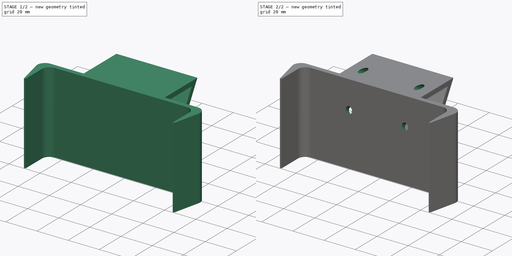
[diagram: build sequence overview — one tinted view per stage of 2, left to right]
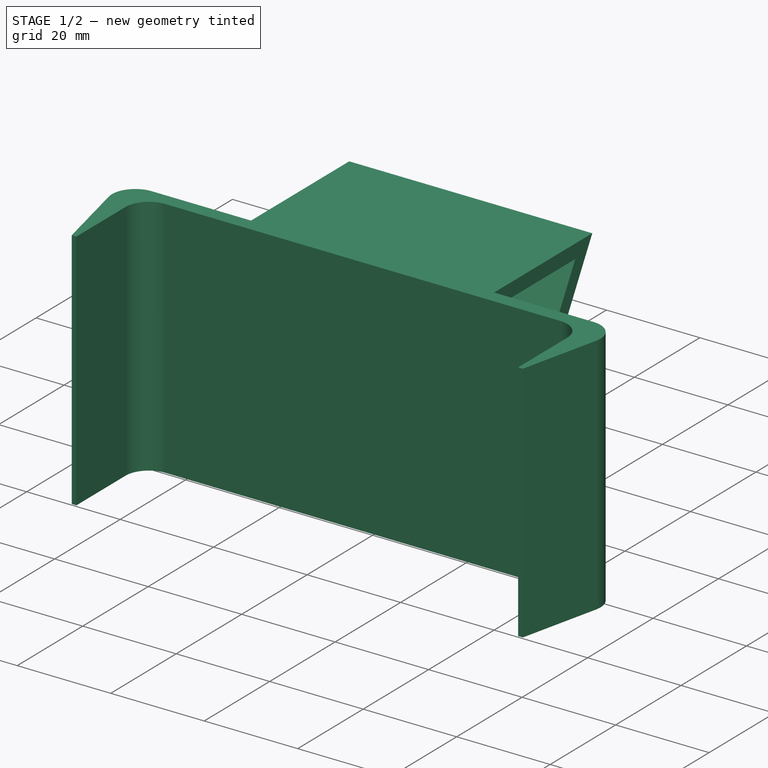
[diagram: stage 1 of 2 — iso view after this stage's code; geometry added in this stage tinted green]
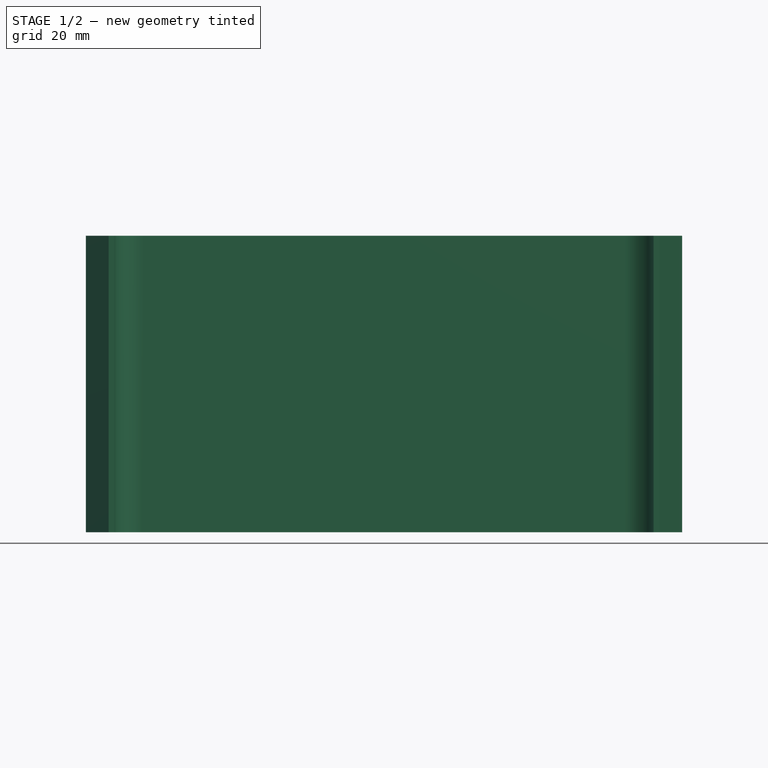
[diagram: stage 1 of 2 — front view after this stage's code; geometry added in this stage tinted green]
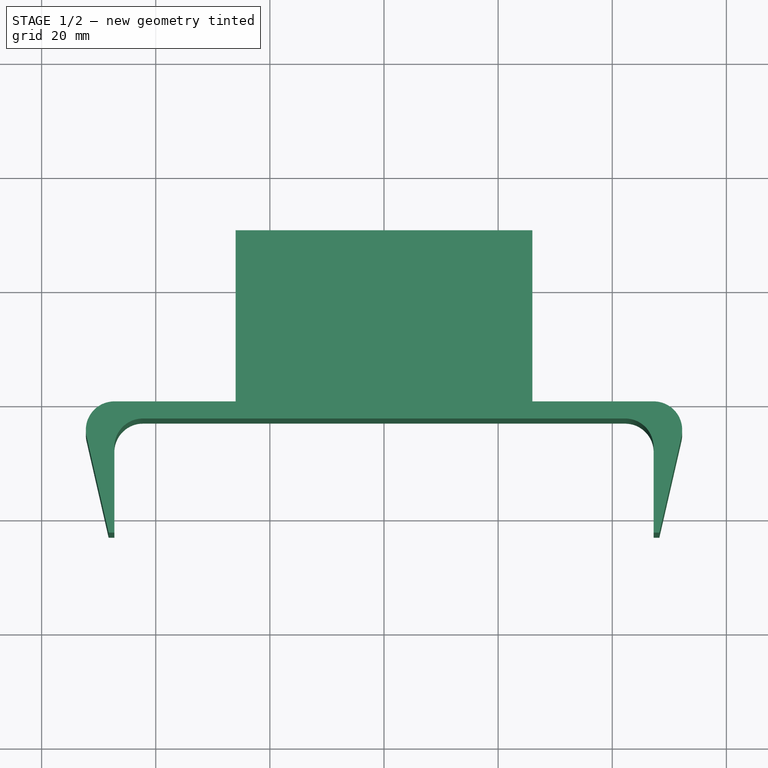
[diagram: stage 1 of 2 — top view after this stage's code; geometry added in this stage tinted green]
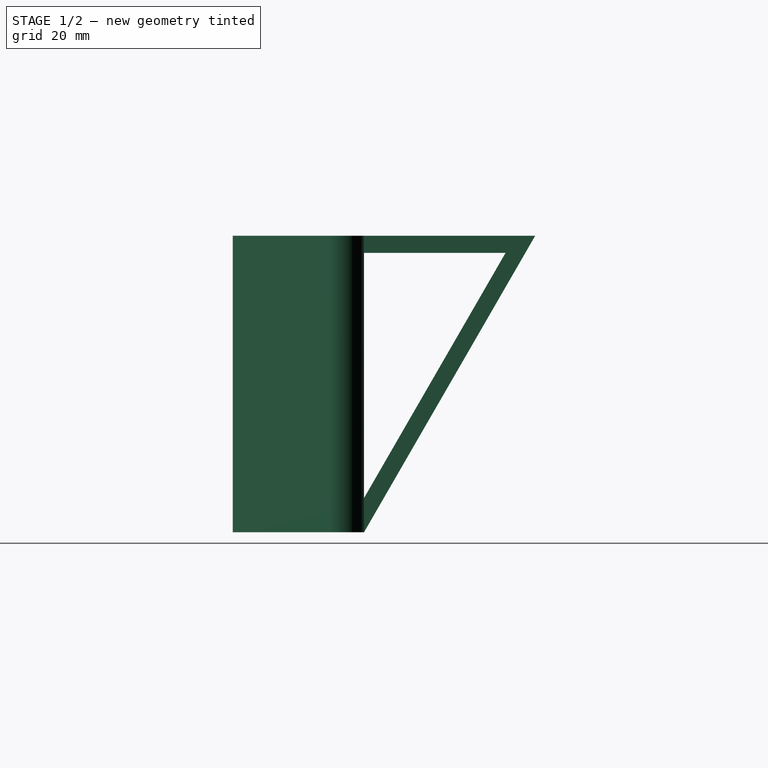
[diagram: stage 1 of 2 — right view after this stage's code; geometry added in this stage tinted green]
FCSTD DOCUMENT  (FreeCAD 0.20R25352 (Git))
Label: hot air holder
License: All rights reserved
LicenseURL: http://en.wikipedia.org/wiki/All_rights_reserved
objects: Sketcher::SketchObject×3, PartDesign::Pad×2, PartDesign::Pocket×1, PartDesign::Fillet×1, PartDesign::Body×1
note: 12 computed .brp shape members not serialized (recipe doc carries the construction recipe); baked Part::Feature solids carry a one-line shape summary decoded from their .brp

FEATURE [Sketcher::SketchObject] Sketch
  FullyConstrained = true
  MapMode = 5
  Support = -> [XY_Plane]
  sketch-geometry (12):
    g0: LineSegment StartX=-48.25 StartY=-23 StartZ=0 EndX=-52.1234 EndY=-6.11815 EndZ=0
    g1: LineSegment StartX=-47.25 StartY=1.8e-15 StartZ=0 EndX=47.25 EndY=-2.7e-15 EndZ=0
    g2: LineSegment StartX=52.1234 StartY=-6.11815 StartZ=0 EndX=48.25 EndY=-23 EndZ=0
    g3: LineSegment StartX=48.25 StartY=-23 StartZ=0 EndX=47.25 EndY=-23 EndZ=0
    g4: LineSegment StartX=47.25 StartY=-23 StartZ=0 EndX=47.25 EndY=-8 EndZ=0
    g5: LineSegment StartX=42.25 StartY=-3 StartZ=0 EndX=-42.25 EndY=-3 EndZ=0
    g6: LineSegment StartX=-47.25 StartY=-8 StartZ=0 EndX=-47.25 EndY=-23 EndZ=0
    g7: LineSegment StartX=-47.25 StartY=-23 StartZ=0 EndX=-48.25 EndY=-23 EndZ=0
    g8: ArcOfCircle CenterX=42.25 CenterY=-8 CenterZ=0 NormalX=0 NormalY=0 NormalZ=1 AngleXU=0 Radius=5 StartAngle=0 EndAngle=1.5708
    g9: ArcOfCircle CenterX=-42.25 CenterY=-8 CenterZ=0 NormalX=0 NormalY=0 NormalZ=1 AngleXU=0 Radius=5 StartAngle=1.5708 EndAngle=3.14159
    g10: ArcOfCircle CenterX=-47.25 CenterY=-5 CenterZ=0 NormalX=0 NormalY=0 NormalZ=1 AngleXU=0 Radius=5 StartAngle=1.5708 EndAngle=3.36713
    g11: ArcOfCircle CenterX=47.25 CenterY=-5 CenterZ=0 NormalX=0 NormalY=0 NormalZ=1 AngleXU=0 Radius=5 StartAngle=6.05765 EndAngle=7.85398
  constraints (30):
    c: Coincident(g2,g3)
    c: Coincident(g3,g4)
    c: Vertical(g4)
    c: Vertical(g6)
    c: Coincident(g6,g7)
    c: Coincident(g7,g0)
    c: Horizontal(g7)
    c: Horizontal(g6,g3)
    c: Tangent(g5,g8) = -1.5708
    c: Tangent(g4,g8) = -1.5708
    c: Tangent(g5,g9) = -1.5708
    c: Tangent(g6,g9) = -1.5708
    c: Tangent(g0,g10) = 1.5708
    c: Tangent(g1,g10) = 1.5708
    c: Tangent(g1,g11) = 1.5708
    c: Tangent(g2,g11) = 1.5708
    c: Equal(g11,g8)
    c: Equal(g8,g9)
    c: Equal(g9,g10)
    c: PointOnObject(g-1,g1)
    c: Horizontal(g5)
    c: Symmetric(g0,g2,g-2)
    c: Equal(g7,g3)
    c: Diameter(g10) = 10
    c: DistanceX(g7,g7) = 1
    c: DistanceY(g5,g1) = 3
    c: DistanceX(g6,g4) = 94.5
    c: DistanceY(g3,g5) = 20
    c: Symmetric(g2,g0,g-2)
    c: Vertical(g6,g1)
FEATURE [PartDesign::Pad] Pad
  Direction = (0,0,1)
  Length = 51.96
  Length2 = 100
  Profile = -> Sketch
  Type = 0
FEATURE [Sketcher::SketchObject] Sketch001
  ExternalGeometry = -> [Pad]
  FullyConstrained = true
  MapMode = 5
  Placement = pos=(0,0,0) rot=(0.57735,0.57735,0.57735;2.0944rad)
  Support = -> [YZ_Plane]
  sketch-geometry (6):
    g0: LineSegment StartX=0 StartY=51.96 StartZ=0 EndX=29.9991 EndY=51.96 EndZ=0
    g1: LineSegment StartX=29.9991 StartY=51.96 StartZ=0 EndX=7.1e-15 EndY=0 EndZ=0
    g2: LineSegment StartX=0 StartY=48.96 StartZ=0 EndX=24.803 EndY=48.96 EndZ=0
    g3: LineSegment StartX=24.803 StartY=48.96 StartZ=0 EndX=7.1e-15 EndY=6 EndZ=0
    g4: LineSegment StartX=0 StartY=48.96 StartZ=0 EndX=0 EndY=51.96 EndZ=0
    g5: LineSegment StartX=7.1e-15 StartY=0 StartZ=0 EndX=7.1e-15 EndY=6 EndZ=0
  constraints (16):
    c: Coincident(g0,g1)
    c: Coincident(g2,g3)
    c: Coincident(g4,g2)
    c: Coincident(g4,g0)
    c: Coincident(g3,g5)
    c: Coincident(g1,g5)
    c: Parallel(g1,g3)
    c: Horizontal(g2)
    c: Horizontal(g0)
    c: Vertical(g4)
    c: Vertical(g5)
    c: Distance(g2,g1) = 3
    c: DistanceY(g4,g4) = 3
    c: Coincident(g1,g-1)
    c: Angle(g-2,g3) = 2.61799
    c: Coincident(g0,g-3)
FEATURE [PartDesign::Pad] Pad001
  BaseFeature = -> Pad
  Direction = (1,-2e-16,3e-16)
  Length = 52
  Length2 = 100
  Midplane = true
  Profile = -> Sketch001
  Type = 0
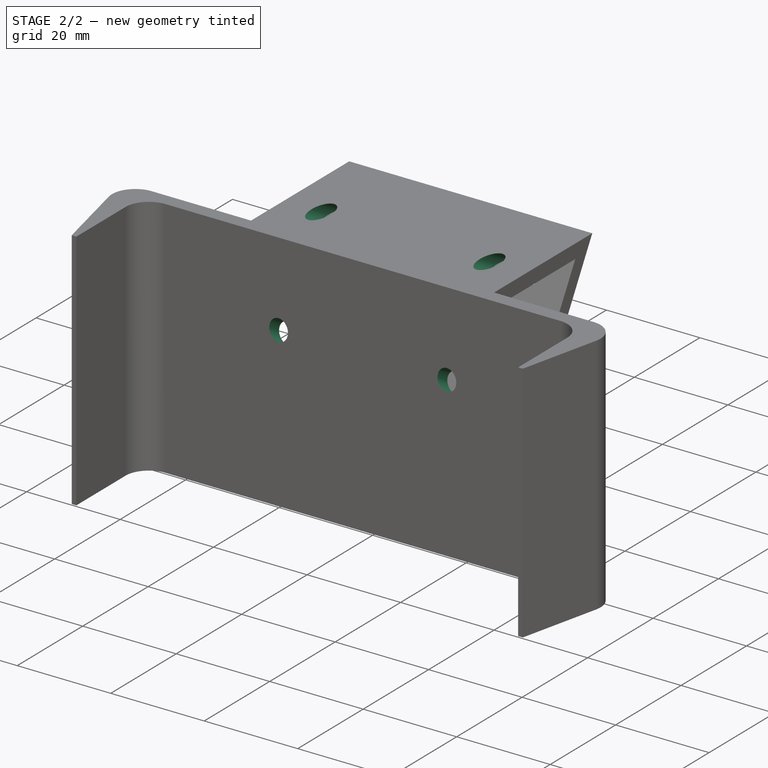
[diagram: stage 2 of 2 — iso view after this stage's code; geometry added in this stage tinted green]
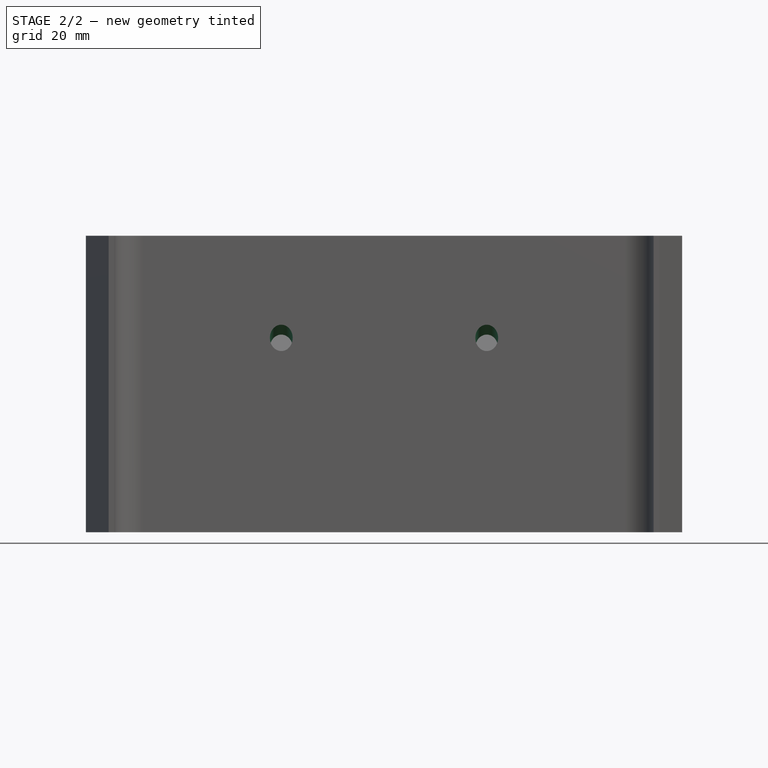
[diagram: stage 2 of 2 — front view after this stage's code; geometry added in this stage tinted green]
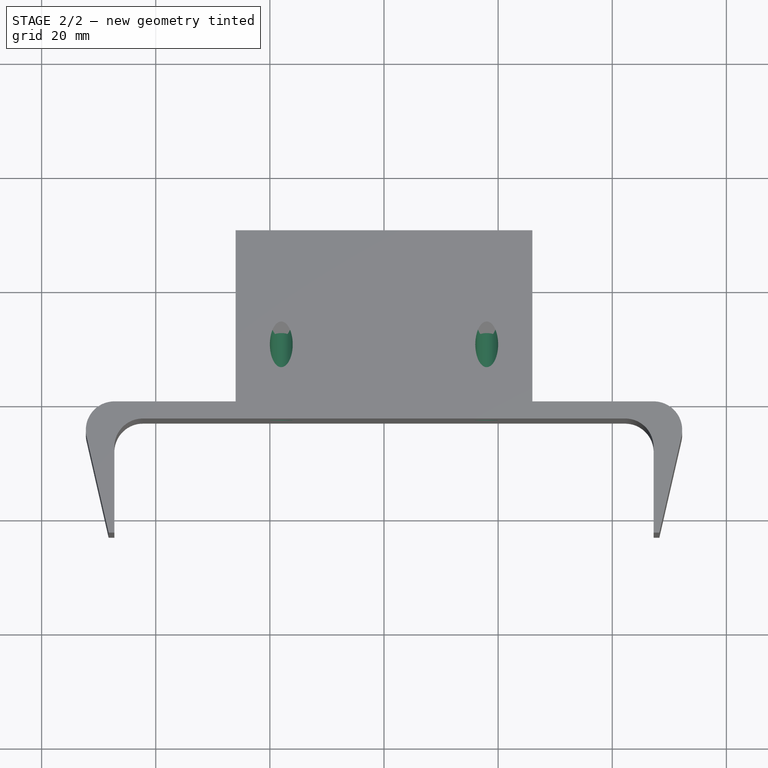
[diagram: stage 2 of 2 — top view after this stage's code; geometry added in this stage tinted green]
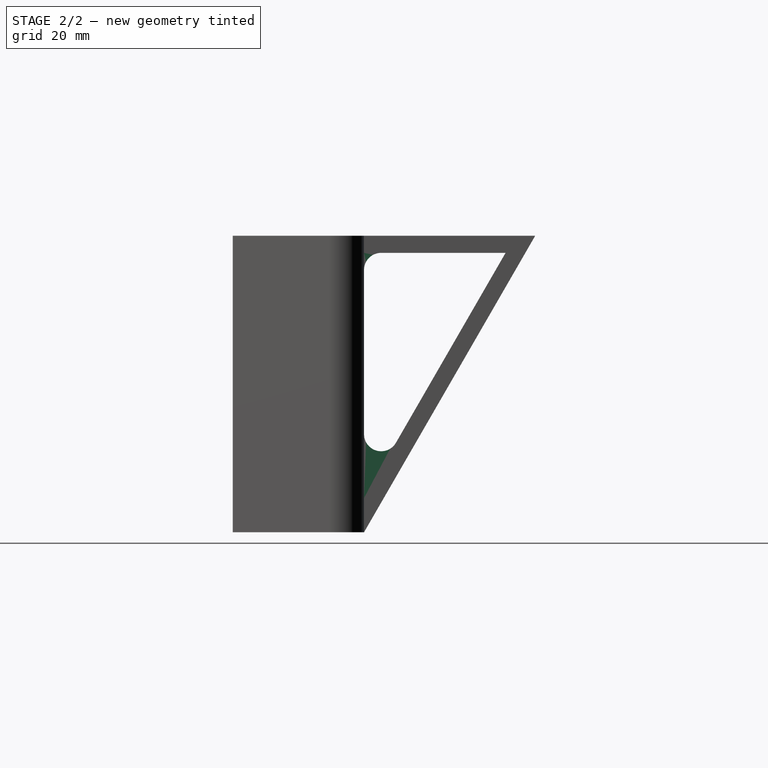
[diagram: stage 2 of 2 — right view after this stage's code; geometry added in this stage tinted green]
FEATURE [Sketcher::SketchObject] Sketch002
  ExternalGeometry = -> [Pad001]
  FullyConstrained = true
  MapMode = 5
  Placement = pos=(0,3.1e-15,-1.8e-15) rot=(0,0.866025,0.5;3.14159rad)
  Support = -> [Pad001]
  sketch-geometry (7):
    g0: Circle CenterX=-18 CenterY=49.9982 CenterZ=0 NormalX=0 NormalY=0 NormalZ=1 AngleXU=0 Radius=2
    g1: Circle CenterX=18 CenterY=49.9982 CenterZ=0 NormalX=0 NormalY=0 NormalZ=1 AngleXU=0 Radius=2
    g2: GeomPoint X=-20 Y=49.9982 Z=0
    g3: GeomPoint X=20 Y=49.9982 Z=0
    g4: Circle CenterX=-18 CenterY=27.9982 CenterZ=0 NormalX=0 NormalY=0 NormalZ=1 AngleXU=0 Radius=2
    g5: Circle CenterX=18 CenterY=27.9982 CenterZ=0 NormalX=0 NormalY=0 NormalZ=1 AngleXU=0 Radius=2
    g6: GeomPoint X=47.75 Y=10.9993 Z=0
  constraints (15):
    c: PointOnObject(g2,g0)
    c: PointOnObject(g3,g1)
    c: Horizontal(g3,g1)
    c: Horizontal(g2,g0)
    c: DistanceX(g2,g3) = 40
    c: Diameter(g0) = 4
    c: Symmetric(g0,g1,g-2)
    c: Equal(g0,g4)
    c: Equal(g4,g5)
    c: Vertical(g0,g4)
    c: Symmetric(g4,g5,g-2)
    c: DistanceY(g4,g0) = 22
    c: Symmetric(g-4,g-5,g6)
    c: DistanceY(g0,g-6) = 10
    c: Equal(g0,g1)
FEATURE [PartDesign::Pocket] Pocket
  BaseFeature = -> Pad001
  Length = 5
  Length2 = 100
  Profile = -> Sketch002
  Type = 1
FEATURE [PartDesign::Fillet] Fillet
  Base = -> Pocket [Edge38,Edge35]
  BaseFeature = -> Pocket
  Radius = 3
  SupportTransform = false
FEATURE [PartDesign::Body] Body
  Group = -> [Sketch,Pad,Sketch001,Pad001,Sketch002,Pocket,Fillet]
  Origin = -> Origin
  Tip = -> Fillet
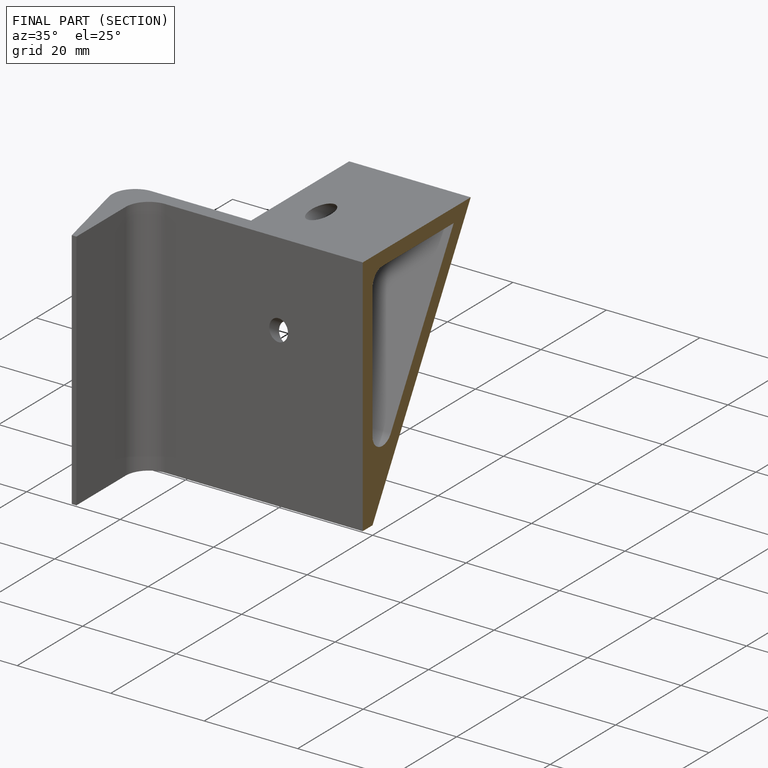
[diagram: finished part — half-section view (interior)]
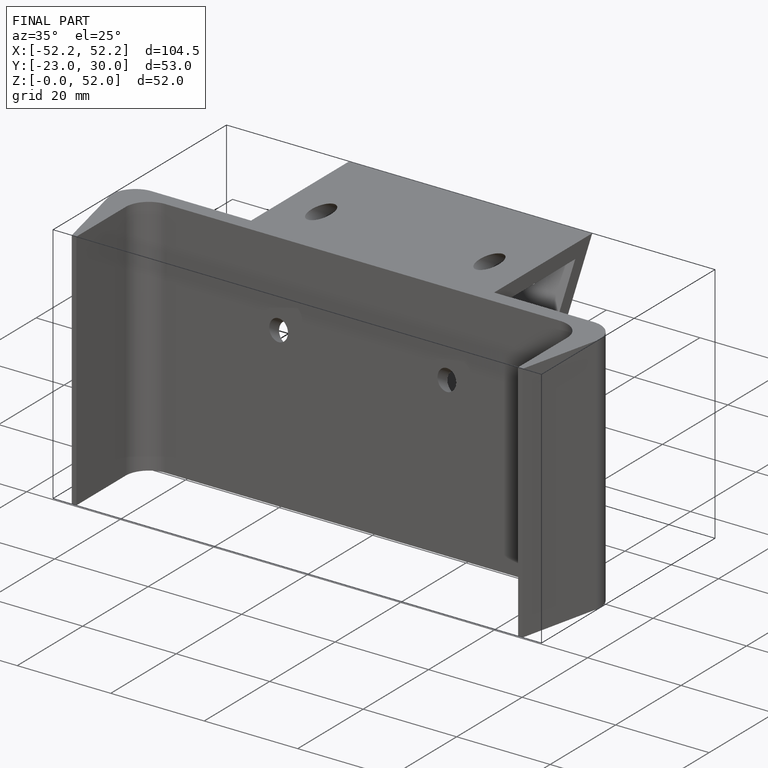
[diagram: finished part — iso view with bounding-box wireframe]
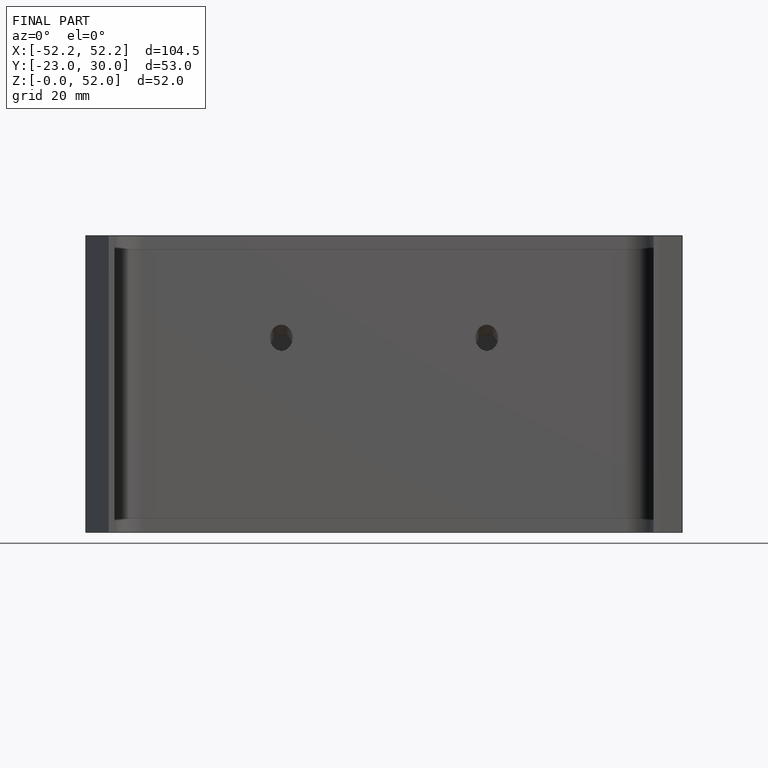
[diagram: finished part — front view with bounding-box wireframe]
